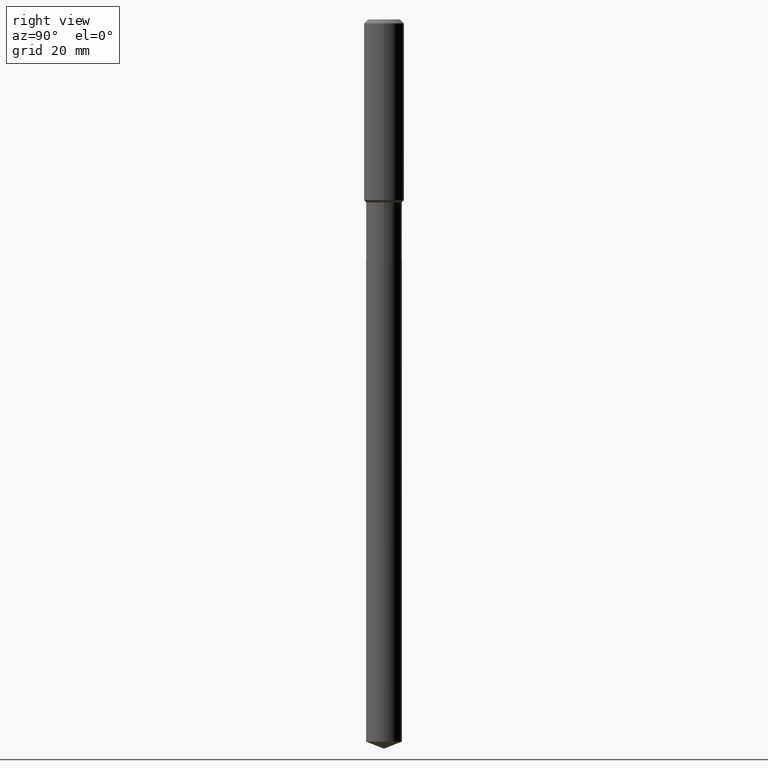
[diagram: clean part render]
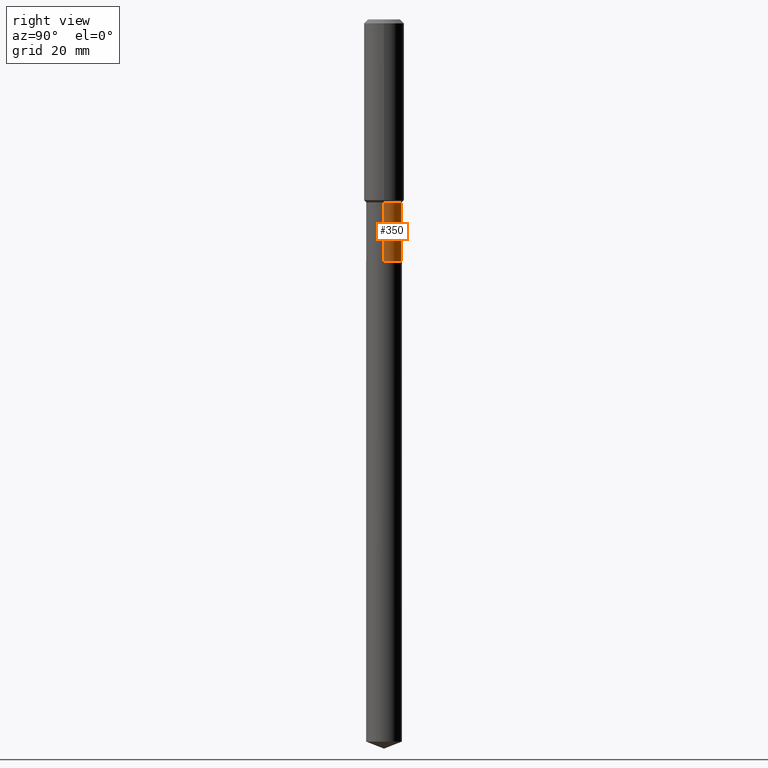
[diagram: same view with one face highlighted and labeled with its STEP entity id]
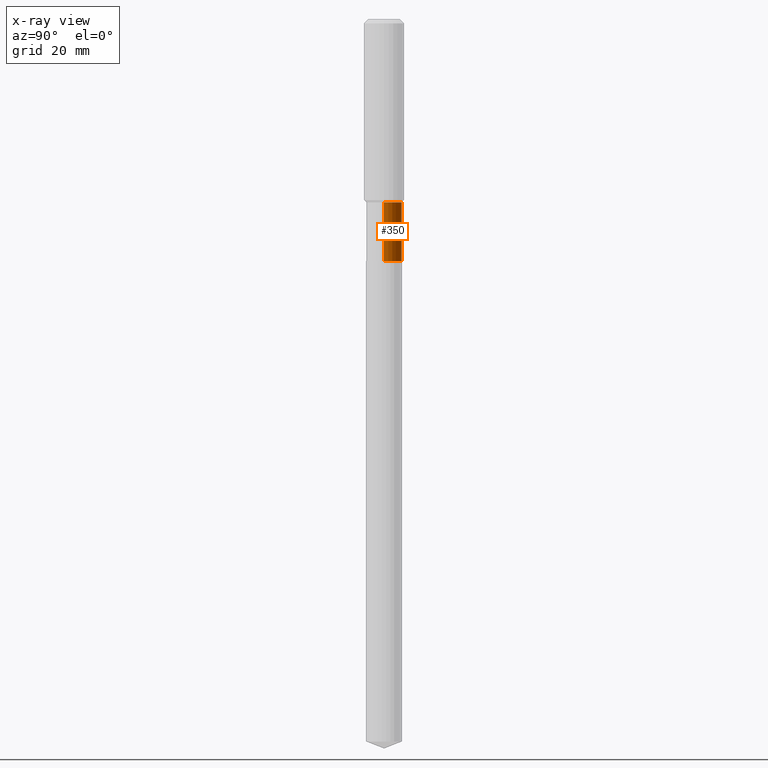
[diagram: x-ray of the same camera — body ghosted, the highlighted face saturated]
A machine part, right view. The second image highlights one B-rep face of the part: STEP entity #350.
The next image is the same camera in x-ray: the body ghosted, the highlighted face saturated — about 0% of this face is hidden behind the body in this view.
In plain terms, the highlighted cylindrical surface (edge-blend (fillet) strip) has radius 4.4501 mm, axis along (-0, 0, 1).
Its self-contained STEP definition (entity closure, byte-faithful):
#10 = EDGE_CURVE ( 'NONE', #47, #386, #188, .T. ) ;
#11 = CARTESIAN_POINT ( 'NONE',  ( 0.1751999999999999391, -7.499003619567302609E-15, -1.797399999999999887 ) ) ;
#15 = CARTESIAN_POINT ( 'NONE',  ( 4.395485632237163419E-29, -6.275588558436669520E-15, -1.797399999999999887 ) ) ;
#47 = VERTEX_POINT ( 'NONE', #469 ) ;
#49 = AXIS2_PLACEMENT_3D ( 'NONE', #15, #138, #438 ) ;
#75 = EDGE_CURVE ( 'NONE', #113, #370, #395, .T. ) ;
#94 = DIRECTION ( 'NONE',  ( -2.445468806185136597E-29, 3.491481338843145583E-15, 1.000000000000000000 ) ) ;
#112 = CARTESIAN_POINT ( 'NONE',  ( 5.808232961570318202E-29, -8.292617327886355207E-15, -2.375100000000000211 ) ) ;
#113 = VERTEX_POINT ( 'NONE', #11 ) ;
#114 = CARTESIAN_POINT ( 'NONE',  ( 0.000000000000000000, 0.000000000000000000, 0.000000000000000000 ) ) ;
#117 = EDGE_CURVE ( 'NONE', #47, #113, #121, .T. ) ;
#121 = LINE ( 'NONE', #418, #153 ) ;
#128 = ORIENTED_EDGE ( 'NONE', *, *, #10, .T. ) ;
#130 = VECTOR ( 'NONE', #292, 39.37007874015748143 ) ;
#134 = CARTESIAN_POINT ( 'NONE',  ( -0.1751999999999999391, -6.039232070109816285E-15, -1.797399999999999887 ) ) ;
#138 = DIRECTION ( 'NONE',  ( -2.445468806185136597E-29, 3.491481338843145583E-15, 1.000000000000000000 ) ) ;
#151 = ORIENTED_EDGE ( 'NONE', *, *, #117, .F. ) ;
#153 = VECTOR ( 'NONE', #256, 39.37007874015748143 ) ;
#180 = ORIENTED_EDGE ( 'NONE', *, *, #442, .T. ) ;
#183 = AXIS2_PLACEMENT_3D ( 'NONE', #114, #258, #419 ) ;
#184 = LINE ( 'NONE', #327, #130 ) ;
#188 = CIRCLE ( 'NONE', #361, 0.1752000000000000501 ) ;
#256 = DIRECTION ( 'NONE',  ( -2.445468806185136877E-29, 3.491481338843145188E-15, 1.000000000000000000 ) ) ;
#258 = DIRECTION ( 'NONE',  ( -2.445468806185136597E-29, 3.491481338843145583E-15, 1.000000000000000000 ) ) ;
#292 = DIRECTION ( 'NONE',  ( -2.445468806185136877E-29, 3.491481338843145188E-15, 1.000000000000000000 ) ) ;
#327 = CARTESIAN_POINT ( 'NONE',  ( -0.1752000000000000224, 1.244870873051695685E-15, -8.617974278126595775E-30 ) ) ;
#342 = FACE_OUTER_BOUND ( 'NONE', #451, .T. ) ;
#349 = ORIENTED_EDGE ( 'NONE', *, *, #75, .F. ) ;
#350 = ADVANCED_FACE ( 'NONE', ( #342 ), #356, .T. ) ;
#356 = CYLINDRICAL_SURFACE ( 'NONE', #183, 0.1752000000000000224 ) ;
#361 = AXIS2_PLACEMENT_3D ( 'NONE', #112, #94, #431 ) ;
#370 = VERTEX_POINT ( 'NONE', #134 ) ;
#386 = VERTEX_POINT ( 'NONE', #439 ) ;
#395 = CIRCLE ( 'NONE', #49, 0.1751999999999999391 ) ;
#418 = CARTESIAN_POINT ( 'NONE',  ( 0.1752000000000000224, -1.223415061130634074E-15, 8.543061711194480720E-30 ) ) ;
#419 = DIRECTION ( 'NONE',  ( 1.000000000000000000, -6.982962677686266711E-15, 4.876176775795935793E-29 ) ) ;
#431 = DIRECTION ( 'NONE',  ( 1.000000000000000000, -6.982962677686266711E-15, 0.000000000000000000 ) ) ;
#438 = DIRECTION ( 'NONE',  ( 1.000000000000000000, -6.982962677686265133E-15, 0.000000000000000000 ) ) ;
#439 = CARTESIAN_POINT ( 'NONE',  ( -0.1752000000000000501, -6.039232070109816285E-15, -2.375100000000000211 ) ) ;
#442 = EDGE_CURVE ( 'NONE', #386, #370, #184, .T. ) ;
#451 = EDGE_LOOP ( 'NONE', ( #128, #180, #349, #151 ) ) ;
#469 = CARTESIAN_POINT ( 'NONE',  ( 0.1752000000000000501, -9.516032389016990662E-15, -2.375100000000000211 ) ) ;